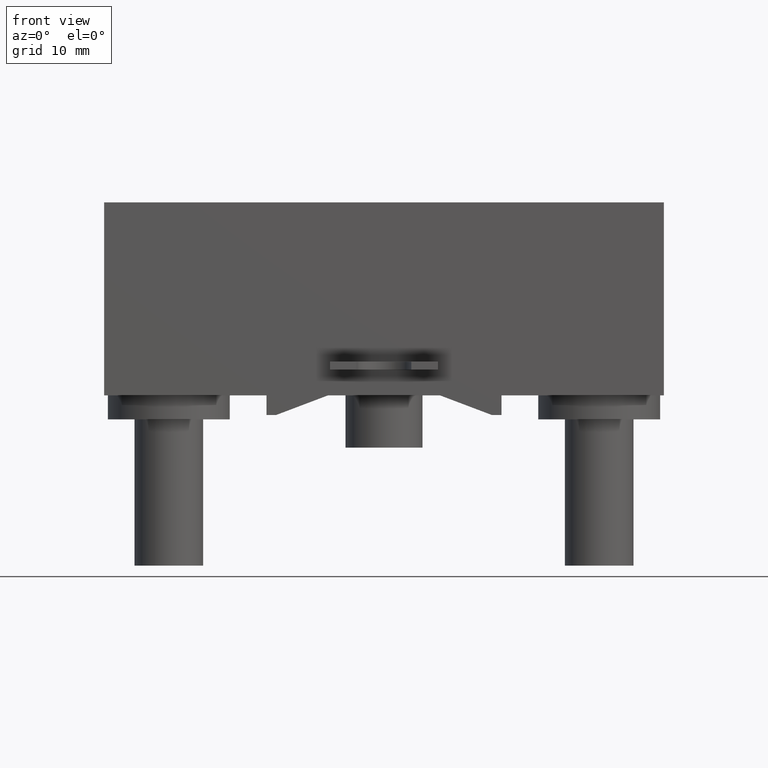
[diagram: clean part render]
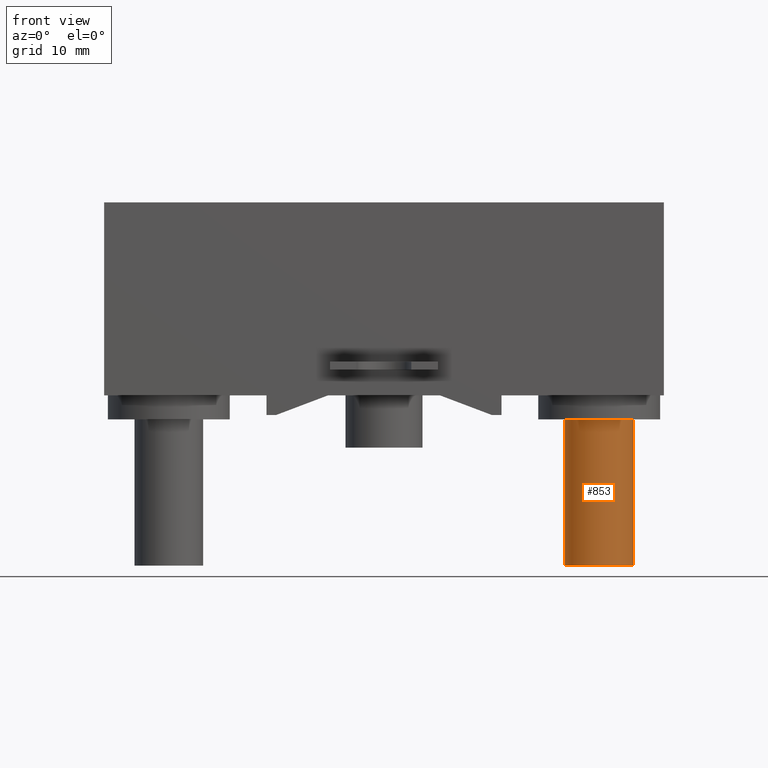
[diagram: same view with one face highlighted and labeled with its STEP entity id]
A machine part, front view. The second image highlights one B-rep face of the part: STEP entity #853.
In plain terms, the highlighted cylindrical surface (edge-blend (fillet) strip) has radius 3.5 mm, axis along (0, 0, -1).
Its self-contained STEP definition (entity closure, byte-faithful):
#219=CARTESIAN_POINT('',(2.197E1,9.525E0,-1.23E1));
#220=DIRECTION('',(0.E0,0.E0,-1.E0));
#221=DIRECTION('',(1.E0,0.E0,0.E0));
#222=AXIS2_PLACEMENT_3D('',#219,#220,#221);
#247=DIRECTION('',(0.E0,0.E0,-1.E0));
#248=VECTOR('',#247,1.493E1);
#249=CARTESIAN_POINT('',(2.547E1,9.525E0,-1.23E1));
#250=LINE('',#249,#248);
#251=DIRECTION('',(0.E0,0.E0,-1.E0));
#252=VECTOR('',#251,1.493E1);
#253=CARTESIAN_POINT('',(1.847E1,9.525E0,-1.23E1));
#254=LINE('',#253,#252);
#255=CARTESIAN_POINT('',(2.197E1,9.525E0,-2.723E1));
#256=DIRECTION('',(0.E0,0.E0,-1.E0));
#257=DIRECTION('',(1.E0,0.E0,0.E0));
#258=AXIS2_PLACEMENT_3D('',#255,#256,#257);
#447=CARTESIAN_POINT('',(2.547E1,9.525E0,-2.723E1));
#448=CARTESIAN_POINT('',(1.847E1,9.525E0,-2.723E1));
#449=VERTEX_POINT('',#447);
#450=VERTEX_POINT('',#448);
#455=CARTESIAN_POINT('',(2.547E1,9.525E0,-1.23E1));
#456=CARTESIAN_POINT('',(1.847E1,9.525E0,-1.23E1));
#457=VERTEX_POINT('',#455);
#458=VERTEX_POINT('',#456);
#839=CARTESIAN_POINT('',(2.197E1,9.525E0,-1.23E1));
#840=DIRECTION('',(0.E0,0.E0,-1.E0));
#841=DIRECTION('',(1.E0,0.E0,0.E0));
#842=AXIS2_PLACEMENT_3D('',#839,#840,#841);
#843=CYLINDRICAL_SURFACE('',#842,3.5E0);
#844=ORIENTED_EDGE('',*,*,#788,.F.);
#846=ORIENTED_EDGE('',*,*,#845,.T.);
#848=ORIENTED_EDGE('',*,*,#847,.T.);
#850=ORIENTED_EDGE('',*,*,#849,.F.);
#851=EDGE_LOOP('',(#844,#846,#848,#850));
#852=FACE_OUTER_BOUND('',#851,.F.);
#223=CIRCLE('',#222,3.5E0);
#259=CIRCLE('',#258,3.5E0);
#788=EDGE_CURVE('',#457,#458,#223,.T.);
#845=EDGE_CURVE('',#457,#449,#250,.T.);
#847=EDGE_CURVE('',#449,#450,#259,.T.);
#849=EDGE_CURVE('',#458,#450,#254,.T.);
#853=ADVANCED_FACE('',(#852),#843,.T.);